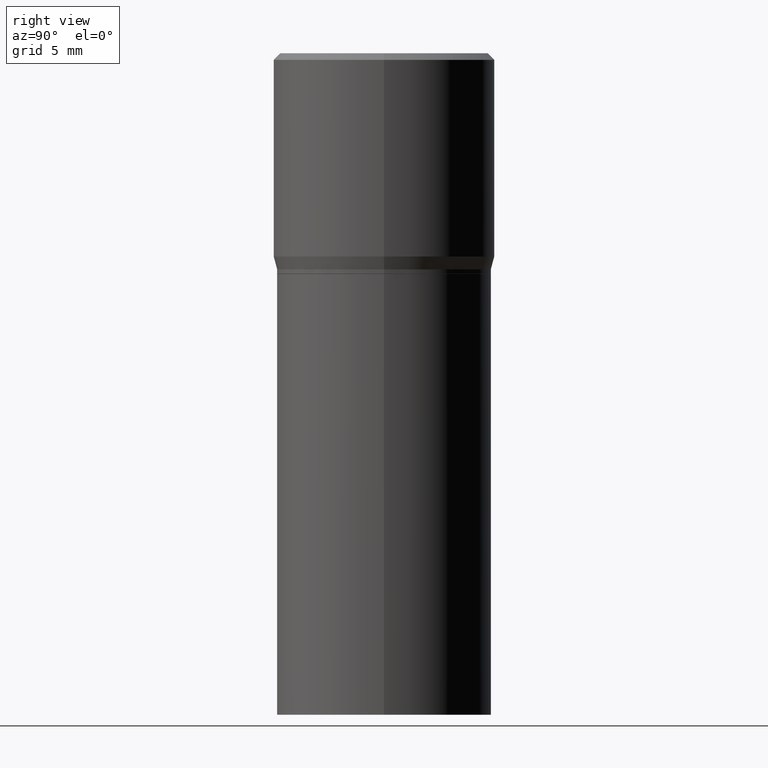
[diagram: clean part render]
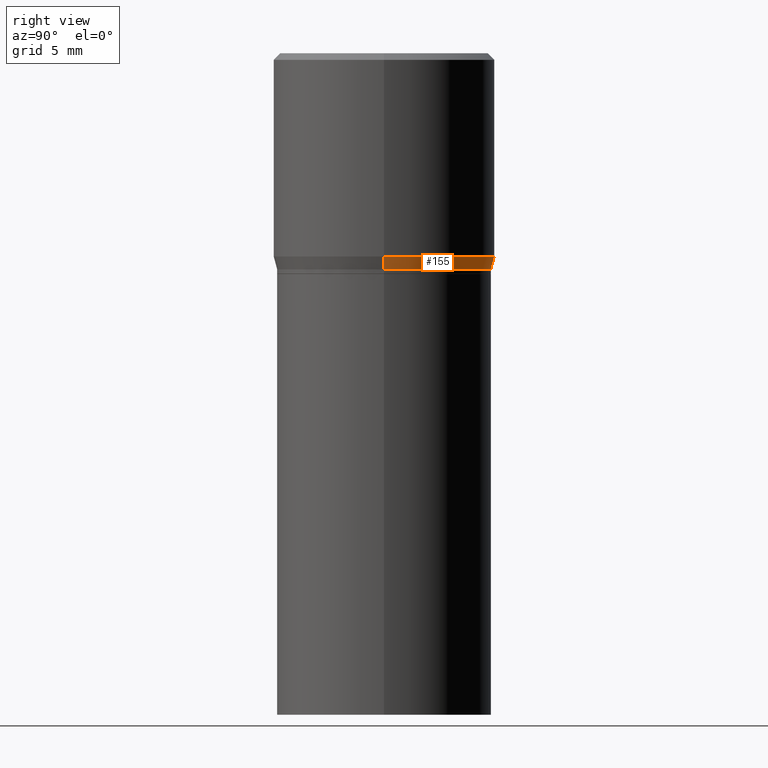
[diagram: same view with one face highlighted and labeled with its STEP entity id]
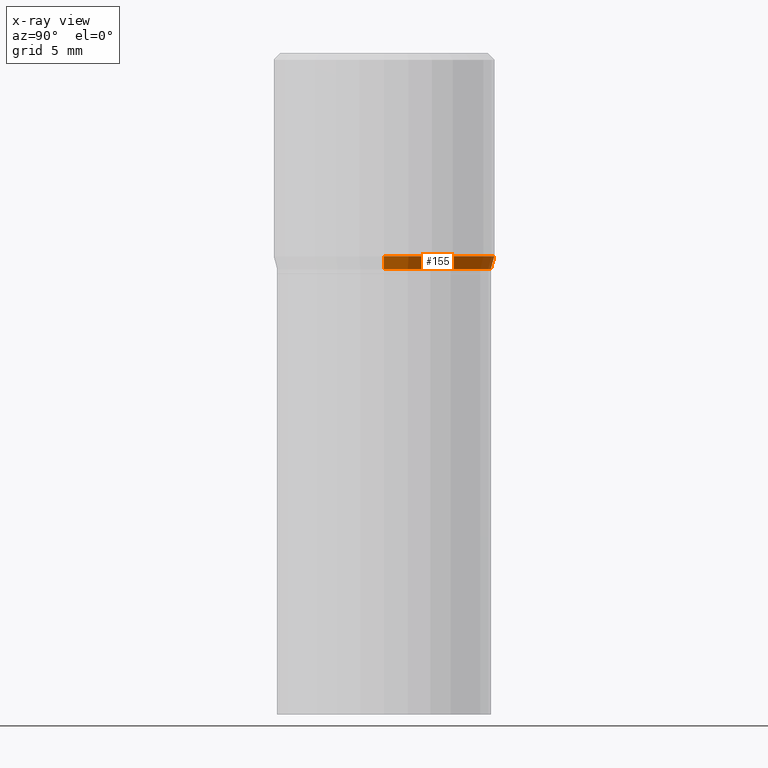
[diagram: x-ray of the same camera — body ghosted, the highlighted face saturated]
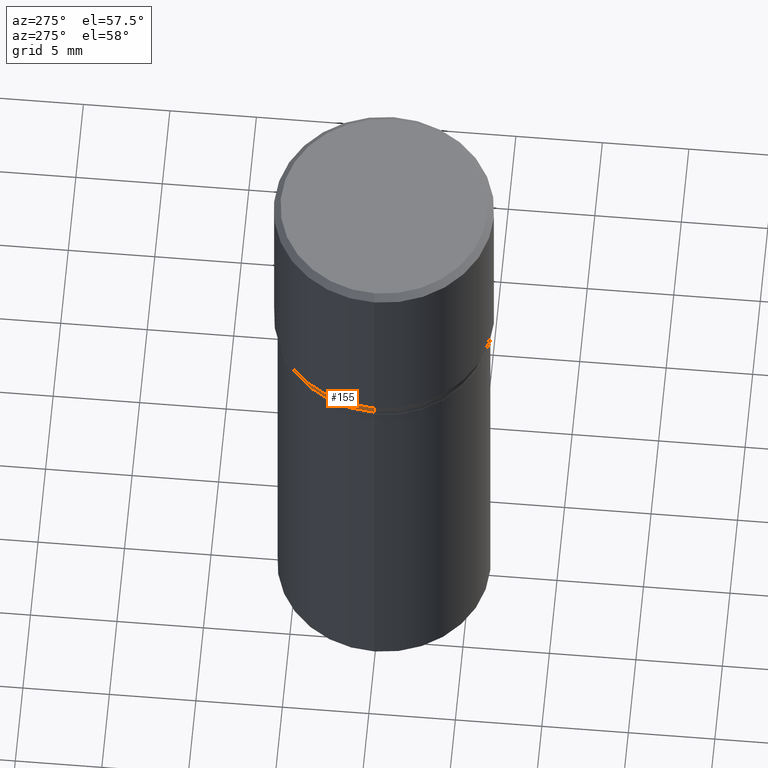
[diagram: same view with one face highlighted and labeled with its STEP entity id]
A machine part, right view. The second image highlights one B-rep face of the part: STEP entity #155.
The next image is the same camera in x-ray: the body ghosted, the highlighted face saturated — about 0% of this face is hidden behind the body in this view.
A second angle (auxiliary view) of the same face is appended — the face is thin or edge-on in the first view.
In plain terms, the highlighted conical surface has half-angle 15 deg.
Its self-contained STEP definition (entity closure, byte-faithful):
#16 = DIRECTION ( 'NONE',  ( -2.445468806185136597E-29, 3.491481338843145583E-15, 1.000000000000000000 ) ) ;
#30 = DIRECTION ( 'NONE',  ( 1.000000000000000000, -6.982962677686266711E-15, 0.000000000000000000 ) ) ;
#49 = CARTESIAN_POINT ( 'NONE',  ( -0.2421999999999999431, 1.010864997782067697E-17, -0.4900000000000001021 ) ) ;
#56 = VERTEX_POINT ( 'NONE', #189 ) ;
#77 = ORIENTED_EDGE ( 'NONE', *, *, #341, .F. ) ;
#93 = CARTESIAN_POINT ( 'NONE',  ( 1.127092127133256402E-29, -1.609188847181259404E-15, -0.4608900037009626693 ) ) ;
#95 = DIRECTION ( 'NONE',  ( -2.445468806185136597E-29, 3.491481338843145583E-15, 1.000000000000000000 ) ) ;
#96 = CARTESIAN_POINT ( 'NONE',  ( 0.2421999999999999431, -3.402099416568755134E-15, -0.4900000000000001021 ) ) ;
#110 = AXIS2_PLACEMENT_3D ( 'NONE', #344, #95, #30 ) ;
#126 = VERTEX_POINT ( 'NONE', #147 ) ;
#128 = VERTEX_POINT ( 'NONE', #440 ) ;
#134 = CIRCLE ( 'NONE', #110, 0.2421999999999999431 ) ;
#147 = CARTESIAN_POINT ( 'NONE',  ( -0.2421999999999999431, 8.863832109840594652E-17, -0.4900000000000001021 ) ) ;
#153 = ORIENTED_EDGE ( 'NONE', *, *, #417, .T. ) ;
#154 = DIRECTION ( 'NONE',  ( 1.000000000000000000, -6.982962677686266711E-15, 0.000000000000000000 ) ) ;
#155 = ADVANCED_FACE ( 'NONE', ( #400 ), #177, .T. ) ;
#177 = CONICAL_SURFACE ( 'NONE', #403, 0.2421999999999999431, 0.2617993877991494078 ) ;
#189 = CARTESIAN_POINT ( 'NONE',  ( 0.2500000000000000000, -3.354929516602825687E-15, -0.4608900037009626693 ) ) ;
#204 = DIRECTION ( 'NONE',  ( 1.000000000000000000, -6.982962677686266711E-15, 0.000000000000000000 ) ) ;
#207 = DIRECTION ( 'NONE',  ( -2.445468806185136597E-29, 3.491481338843145583E-15, 1.000000000000000000 ) ) ;
#244 = CARTESIAN_POINT ( 'NONE',  ( 0.2421999999999999431, -3.402099416568755134E-15, -0.4900000000000001021 ) ) ;
#269 = EDGE_CURVE ( 'NONE', #126, #128, #365, .T. ) ;
#272 = EDGE_LOOP ( 'NONE', ( #153, #304, #275, #77 ) ) ;
#275 = ORIENTED_EDGE ( 'NONE', *, *, #378, .F. ) ;
#295 = DIRECTION ( 'NONE',  ( -0.2588190451025206840, 5.211531920934545520E-15, 0.9659258262890682012 ) ) ;
#304 = ORIENTED_EDGE ( 'NONE', *, *, #269, .T. ) ;
#314 = VERTEX_POINT ( 'NONE', #244 ) ;
#317 = VECTOR ( 'NONE', #339, 39.37007874015748854 ) ;
#327 = CARTESIAN_POINT ( 'NONE',  ( 1.198279715030717173E-29, -1.710825856033141537E-15, -0.4900000000000001021 ) ) ;
#338 = AXIS2_PLACEMENT_3D ( 'NONE', #93, #207, #204 ) ;
#339 = DIRECTION ( 'NONE',  ( 0.2588190451025206840, 1.565188264969626504E-15, 0.9659258262890682012 ) ) ;
#341 = EDGE_CURVE ( 'NONE', #314, #56, #420, .T. ) ;
#344 = CARTESIAN_POINT ( 'NONE',  ( 1.198279715030717173E-29, -1.710825856033141537E-15, -0.4900000000000001021 ) ) ;
#347 = CIRCLE ( 'NONE', #338, 0.2500000000000000000 ) ;
#365 = LINE ( 'NONE', #49, #438 ) ;
#378 = EDGE_CURVE ( 'NONE', #56, #128, #347, .T. ) ;
#400 = FACE_OUTER_BOUND ( 'NONE', #272, .T. ) ;
#403 = AXIS2_PLACEMENT_3D ( 'NONE', #327, #16, #154 ) ;
#417 = EDGE_CURVE ( 'NONE', #314, #126, #134, .T. ) ;
#420 = LINE ( 'NONE', #96, #317 ) ;
#438 = VECTOR ( 'NONE', #295, 39.37007874015748854 ) ;
#440 = CARTESIAN_POINT ( 'NONE',  ( -0.2500000000000000000, 1.671679922189909619E-16, -0.4608900037009626693 ) ) ;